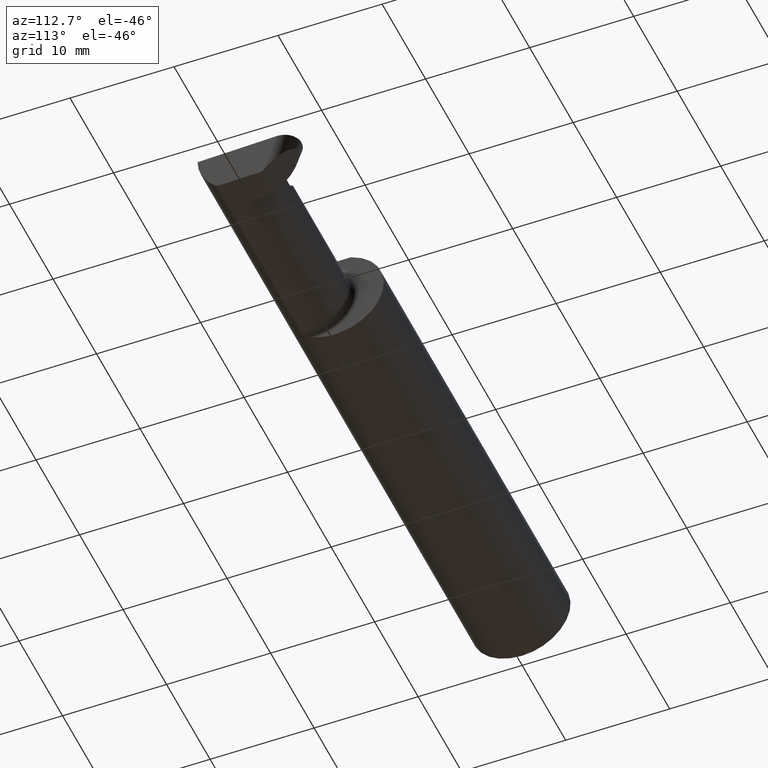
[diagram: clean part render]
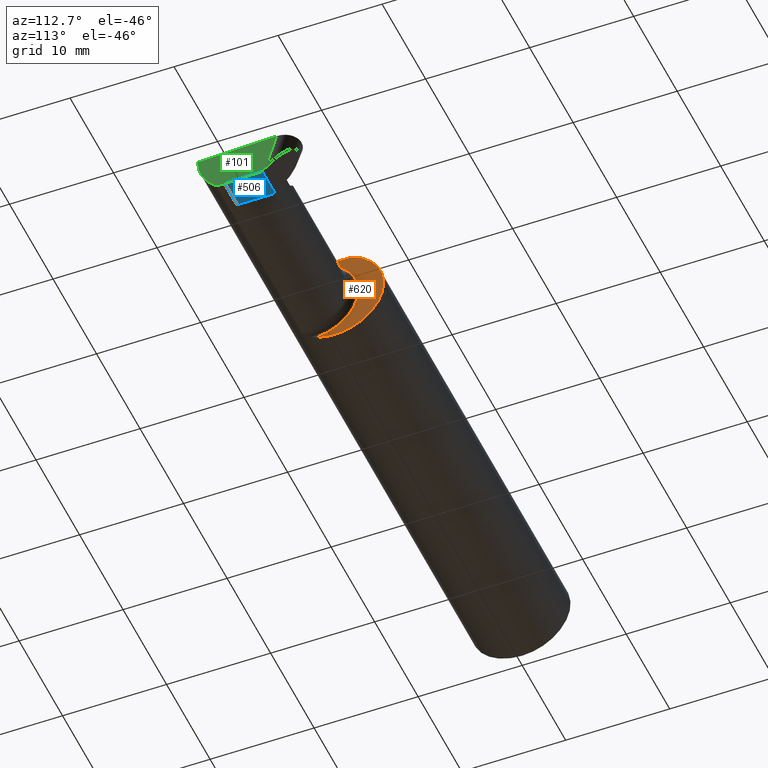
[diagram: same view with three faces highlighted in distinct colors, each labeled with its STEP entity id]
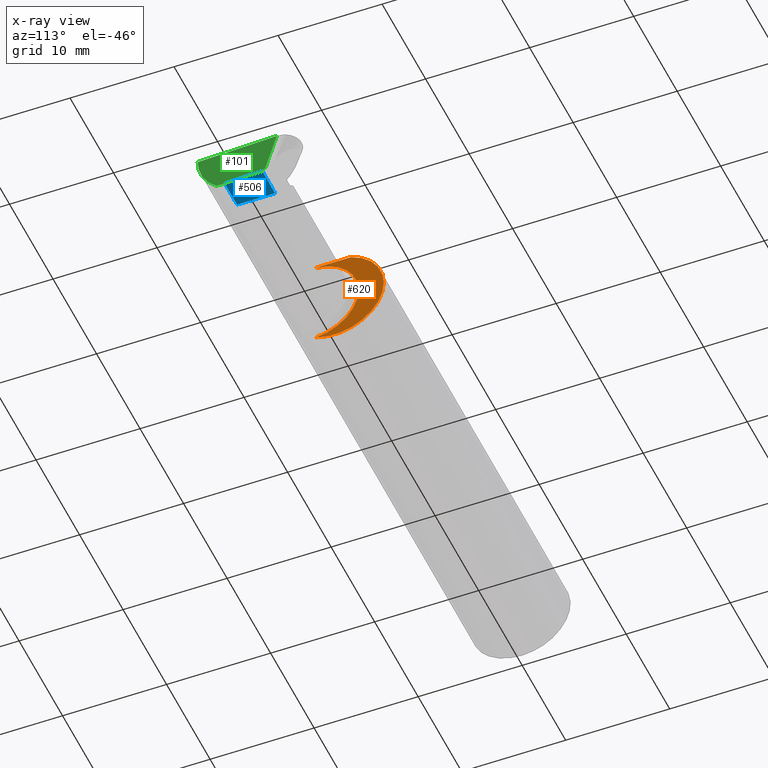
[diagram: x-ray of the same camera — body ghosted, the three highlighted faces saturated]
A machine part, auxiliary view with three faces highlighted in distinct colors.
The next image is the same camera in x-ray (body ghosted, the three faces saturated) — at least one of them is partly hidden behind the body in this view.
Their STEP definitions:

[orange] entity #620 — the highlighted planar face has unit normal (1, 0, 0).
#13 = EDGE_CURVE ( 'NONE', #93, #87, #415, .T. ) ;
#51 = FACE_OUTER_BOUND ( 'NONE', #496, .T. ) ;
#87 = VERTEX_POINT ( 'NONE', #347 ) ;
#93 = VERTEX_POINT ( 'NONE', #130 ) ;
#114 = DIRECTION ( 'NONE',  ( 1.000000000000000000, 0.000000000000000000, 0.000000000000000000 ) ) ;
#119 = DIRECTION ( 'NONE',  ( 1.000000000000000000, 0.000000000000000000, 0.000000000000000000 ) ) ;
#130 = CARTESIAN_POINT ( 'NONE',  ( 1.699999999999999956, -0.06325108694718287183, 0.1763499999999999235 ) ) ;
#196 = DIRECTION ( 'NONE',  ( 0.000000000000000000, 0.000000000000000000, 1.000000000000000000 ) ) ;
#209 = EDGE_CURVE ( 'NONE', #601, #87, #422, .T. ) ;
#216 = ORIENTED_EDGE ( 'NONE', *, *, #13, .F. ) ;
#256 = CARTESIAN_POINT ( 'NONE',  ( 1.699999999999999956, -0.08334999999999999354, 0.000000000000000000 ) ) ;
#309 = PLANE ( 'NONE',  #504 ) ;
#343 = VECTOR ( 'NONE', #537, 39.37007874015748143 ) ;
#347 = CARTESIAN_POINT ( 'NONE',  ( 1.699999999999999956, 0.06325108694718235836, 0.1763499999999999235 ) ) ;
#358 = DIRECTION ( 'NONE',  ( 0.000000000000000000, 0.000000000000000000, -1.000000000000000000 ) ) ;
#367 = DIRECTION ( 'NONE',  ( 0.000000000000000000, 0.000000000000000000, -1.000000000000000000 ) ) ;
#377 = VERTEX_POINT ( 'NONE', #457 ) ;
#415 = LINE ( 'NONE', #545, #343 ) ;
#419 = CARTESIAN_POINT ( 'NONE',  ( 1.699999999999999956, 0.000000000000000000, 0.000000000000000000 ) ) ;
#420 = ORIENTED_EDGE ( 'NONE', *, *, #674, .T. ) ;
#422 = CIRCLE ( 'NONE', #524, 0.1873499999999999888 ) ;
#423 = EDGE_CURVE ( 'NONE', #93, #377, #786, .T. ) ;
#432 = CARTESIAN_POINT ( 'NONE',  ( 1.699999999999999956, 0.000000000000000000, 0.000000000000000000 ) ) ;
#436 = ORIENTED_EDGE ( 'NONE', *, *, #209, .T. ) ;
#438 = DIRECTION ( 'NONE',  ( 0.000000000000000000, 0.000000000000000000, -1.000000000000000000 ) ) ;
#457 = CARTESIAN_POINT ( 'NONE',  ( 1.699999999999999956, -0.06851976604679071992, 0.1743704796142198366 ) ) ;
#479 = DIRECTION ( 'NONE',  ( 1.000000000000000000, 0.000000000000000000, 0.000000000000000000 ) ) ;
#491 = CIRCLE ( 'NONE', #668, 0.1749999999999999334 ) ;
#496 = EDGE_LOOP ( 'NONE', ( #436, #216, #782, #420 ) ) ;
#499 = CARTESIAN_POINT ( 'NONE',  ( 1.699999999999999956, -0.06851976604679071992, -0.1743704796142198366 ) ) ;
#504 = AXIS2_PLACEMENT_3D ( 'NONE', #621, #114, #438 ) ;
#524 = AXIS2_PLACEMENT_3D ( 'NONE', #432, #119, #367 ) ;
#537 = DIRECTION ( 'NONE',  ( 0.000000000000000000, 1.000000000000000000, 0.000000000000000000 ) ) ;
#545 = CARTESIAN_POINT ( 'NONE',  ( 1.699999999999999956, 0.1873499999999998500, 0.1763499999999999235 ) ) ;
#601 = VERTEX_POINT ( 'NONE', #499 ) ;
#620 = ADVANCED_FACE ( 'NONE', ( #51 ), #309, .T. ) ;
#621 = CARTESIAN_POINT ( 'NONE',  ( 1.699999999999999956, 0.1873499999999999055, 0.000000000000000000 ) ) ;
#668 = AXIS2_PLACEMENT_3D ( 'NONE', #256, #766, #196 ) ;
#674 = EDGE_CURVE ( 'NONE', #377, #601, #491, .T. ) ;
#762 = AXIS2_PLACEMENT_3D ( 'NONE', #419, #479, #358 ) ;
#766 = DIRECTION ( 'NONE',  ( -1.000000000000000000, -0.000000000000000000, -0.000000000000000000 ) ) ;
#782 = ORIENTED_EDGE ( 'NONE', *, *, #423, .T. ) ;
#786 = CIRCLE ( 'NONE', #762, 0.1873499999999999888 ) ;

[blue] entity #506 — the highlighted planar face has unit normal (0, 0, 1).
#19 = VERTEX_POINT ( 'NONE', #797 ) ;
#55 = LINE ( 'NONE', #253, #733 ) ;
#102 = CARTESIAN_POINT ( 'NONE',  ( 2.379376900814294871, -0.08346159389558750752, -0.1500000000000000500 ) ) ;
#106 = CARTESIAN_POINT ( 'NONE',  ( 2.733184360054361939, -0.08335000000000014619, -0.1500000000000000500 ) ) ;
#109 = PLANE ( 'NONE',  #233 ) ;
#141 = CARTESIAN_POINT ( 'NONE',  ( 2.379331556216793597, 0.06030305154315079852, -0.1500000000000000500 ) ) ;
#150 = ORIENTED_EDGE ( 'NONE', *, *, #459, .T. ) ;
#153 = VECTOR ( 'NONE', #181, 39.37007874015748143 ) ;
#156 = DIRECTION ( 'NONE',  ( 1.000000000000000000, 0.000000000000000000, -0.000000000000000000 ) ) ;
#181 = DIRECTION ( 'NONE',  ( -1.000000000000000000, -0.000000000000000000, -0.000000000000000000 ) ) ;
#184 = EDGE_CURVE ( 'NONE', #501, #371, #55, .T. ) ;
#187 = EDGE_LOOP ( 'NONE', ( #299, #570, #150, #266 ) ) ;
#233 = AXIS2_PLACEMENT_3D ( 'NONE', #106, #237, #156 ) ;
#237 = DIRECTION ( 'NONE',  ( 0.000000000000000000, 0.000000000000000000, 1.000000000000000000 ) ) ;
#248 = VECTOR ( 'NONE', #417, 39.37007874015748143 ) ;
#253 = CARTESIAN_POINT ( 'NONE',  ( 2.490542817754151539, -0.07487677063221394314, -0.1500000000000000500 ) ) ;
#266 = ORIENTED_EDGE ( 'NONE', *, *, #184, .T. ) ;
#289 = LINE ( 'NONE', #102, #248 ) ;
#299 = ORIENTED_EDGE ( 'NONE', *, *, #658, .T. ) ;
#301 = LINE ( 'NONE', #750, #153 ) ;
#346 = CARTESIAN_POINT ( 'NONE',  ( 2.495263401164271588, 0.06030305154315081240, -0.1500000000000000222 ) ) ;
#371 = VERTEX_POINT ( 'NONE', #773 ) ;
#417 = DIRECTION ( 'NONE',  ( -0.0003154085283454165570, 0.9999999502587288980, 0.000000000000000000 ) ) ;
#459 = EDGE_CURVE ( 'NONE', #768, #501, #474, .T. ) ;
#474 = LINE ( 'NONE', #661, #480 ) ;
#480 = VECTOR ( 'NONE', #792, 39.37007874015748143 ) ;
#501 = VERTEX_POINT ( 'NONE', #346 ) ;
#506 = ADVANCED_FACE ( 'NONE', ( #800 ), #109, .F. ) ;
#570 = ORIENTED_EDGE ( 'NONE', *, *, #815, .T. ) ;
#658 = EDGE_CURVE ( 'NONE', #371, #19, #301, .T. ) ;
#661 = CARTESIAN_POINT ( 'NONE',  ( -0.001039370078739994957, 0.06030305154315079852, -0.1500000000000000500 ) ) ;
#692 = DIRECTION ( 'NONE',  ( -0.03489949670249442581, -0.9993908270190959842, 0.000000000000000000 ) ) ;
#733 = VECTOR ( 'NONE', #692, 39.37007874015748143 ) ;
#750 = CARTESIAN_POINT ( 'NONE',  ( 2.733184360054361939, -0.08335000000000014619, -0.1500000000000000500 ) ) ;
#768 = VERTEX_POINT ( 'NONE', #141 ) ;
#773 = CARTESIAN_POINT ( 'NONE',  ( 2.490246926064548560, -0.08335000000000014619, -0.1500000000000000500 ) ) ;
#792 = DIRECTION ( 'NONE',  ( 1.000000000000000000, -0.000000000000000000, -0.000000000000000000 ) ) ;
#797 = CARTESIAN_POINT ( 'NONE',  ( 2.379376865616626535, -0.08334999999999999354, -0.1500000000000000222 ) ) ;
#800 = FACE_OUTER_BOUND ( 'NONE', #187, .T. ) ;
#815 = EDGE_CURVE ( 'NONE', #19, #768, #289, .T. ) ;

[green] entity #101 — the highlighted planar face has unit normal (-0.9992, 0.0349, 0.0175).
#16 = CARTESIAN_POINT ( 'NONE',  ( 2.497701985005003511, 0.1068529269586859509, -0.1034501245844643563 ) ) ;
#26 = CARTESIAN_POINT ( 'NONE',  ( 2.490246926064548560, -0.08335000000000014619, -0.1500000000000000500 ) ) ;
#38 = CARTESIAN_POINT ( 'NONE',  ( 2.499961842619776053, 0.1198259601510516942, 0.000000000000000000 ) ) ;
#41 = CARTESIAN_POINT ( 'NONE',  ( 2.489130585478359858, -0.1172600179964006784, -0.1461167706989303650 ) ) ;
#55 = LINE ( 'NONE', #253, #733 ) ;
#64 = PLANE ( 'NONE',  #200 ) ;
#76 = CARTESIAN_POINT ( 'NONE',  ( 2.489130585478359858, -0.1172600179964006784, -0.1461167706989303650 ) ) ;
#101 = ADVANCED_FACE ( 'NONE', ( #182 ), #64, .F. ) ;
#117 = VECTOR ( 'NONE', #231, 39.37007874015748854 ) ;
#122 = LINE ( 'NONE', #338, #174 ) ;
#123 = VERTEX_POINT ( 'NONE', #688 ) ;
#126 = DIRECTION ( 'NONE',  ( -0.03489949670249442581, -0.9993908270190959842, 0.000000000000000000 ) ) ;
#165 = VERTEX_POINT ( 'NONE', #563 ) ;
#168 = LINE ( 'NONE', #38, #117 ) ;
#174 = VECTOR ( 'NONE', #770, 39.37007874015748143 ) ;
#182 = FACE_OUTER_BOUND ( 'NONE', #385, .T. ) ;
#184 = EDGE_CURVE ( 'NONE', #501, #371, #55, .T. ) ;
#200 = AXIS2_PLACEMENT_3D ( 'NONE', #632, #698, #126 ) ;
#223 = EDGE_CURVE ( 'NONE', #561, #165, #122, .T. ) ;
#231 = DIRECTION ( 'NONE',  ( -0.03489949670249442581, -0.9993908270190959842, 0.000000000000000000 ) ) ;
#253 = CARTESIAN_POINT ( 'NONE',  ( 2.490542817754151539, -0.07487677063221394314, -0.1500000000000000500 ) ) ;
#271 =( BOUNDED_CURVE ( )  B_SPLINE_CURVE ( 3, ( #76, #400, #649, #26 ),
 .UNSPECIFIED., .F., .T. ) 
 B_SPLINE_CURVE_WITH_KNOTS ( ( 4, 4 ),
 ( 0.8789888184544187855, 1.107026853503861874 ),
 .UNSPECIFIED. ) 
 CURVE ( )  GEOMETRIC_REPRESENTATION_ITEM ( )  RATIONAL_B_SPLINE_CURVE ( ( 1.000000000000000000, 0.9956712472009929815, 0.9956712472009929815, 1.000000000000000000 ) ) 
 REPRESENTATION_ITEM ( '' )  );
#280 = EDGE_CURVE ( 'NONE', #493, #123, #606, .T. ) ;
#297 = ORIENTED_EDGE ( 'NONE', *, *, #303, .T. ) ;
#303 = EDGE_CURVE ( 'NONE', #493, #371, #271, .T. ) ;
#338 = CARTESIAN_POINT ( 'NONE',  ( 2.499889975361145655, 0.1173673719240849594, 0.0008009143901308144907 ) ) ;
#346 = CARTESIAN_POINT ( 'NONE',  ( 2.495263401164271588, 0.06030305154315081240, -0.1500000000000000222 ) ) ;
#371 = VERTEX_POINT ( 'NONE', #773 ) ;
#385 = EDGE_LOOP ( 'NONE', ( #450, #689, #433, #793, #297, #726 ) ) ;
#393 = LINE ( 'NONE', #16, #455 ) ;
#400 = CARTESIAN_POINT ( 'NONE',  ( 2.489474166416076883, -0.1061291577212409715, -0.1486999626928446061 ) ) ;
#433 = ORIENTED_EDGE ( 'NONE', *, *, #449, .T. ) ;
#449 = EDGE_CURVE ( 'NONE', #165, #123, #168, .T. ) ;
#450 = ORIENTED_EDGE ( 'NONE', *, *, #780, .F. ) ;
#455 = VECTOR ( 'NONE', #567, 39.37007874015748143 ) ;
#493 = VERTEX_POINT ( 'NONE', #41 ) ;
#501 = VERTEX_POINT ( 'NONE', #346 ) ;
#561 = VERTEX_POINT ( 'NONE', #626 ) ;
#563 = CARTESIAN_POINT ( 'NONE',  ( 2.499866899295296374, 0.1171071390637351134, 0.000000000000000000 ) ) ;
#567 = DIRECTION ( 'NONE',  ( -0.03701744261649831530, -0.7066221440565398915, -0.7066221440565479961 ) ) ;
#568 = CARTESIAN_POINT ( 'NONE',  ( 2.488188068920404561, -0.1623470442677541203, -0.1099340280425338823 ) ) ;
#606 =( BOUNDED_CURVE ( )  B_SPLINE_CURVE ( 3, ( #777, #568, #641, #645 ),
 .UNSPECIFIED., .F., .T. ) 
 B_SPLINE_CURVE_WITH_KNOTS ( ( 4, 4 ),
 ( 5.852427379562172405, 6.746954780470620250 ),
 .UNSPECIFIED. ) 
 CURVE ( )  GEOMETRIC_REPRESENTATION_ITEM ( )  RATIONAL_B_SPLINE_CURVE ( ( 1.000000000000000000, 0.9344226172588802060, 0.9344226172588802060, 1.000000000000000000 ) ) 
 REPRESENTATION_ITEM ( '' )  );
#626 = CARTESIAN_POINT ( 'NONE',  ( 2.495889335989002422, 0.07225145685232294002, -0.1380515946908277558 ) ) ;
#632 = CARTESIAN_POINT ( 'NONE',  ( 2.499961842619776053, 0.1198259601510516942, 0.000000000000000000 ) ) ;
#641 = CARTESIAN_POINT ( 'NONE',  ( 2.488225324098681579, -0.1873500000000000443, -0.05781030015605120864 ) ) ;
#645 = CARTESIAN_POINT ( 'NONE',  ( 2.489235021721937002, -0.1873499999999999888, 0.000000000000000000 ) ) ;
#649 = CARTESIAN_POINT ( 'NONE',  ( 2.489847897735300464, -0.09477667630339431382, -0.1499999999999999667 ) ) ;
#688 = CARTESIAN_POINT ( 'NONE',  ( 2.489235021721937002, -0.1873499999999999888, 0.000000000000000000 ) ) ;
#689 = ORIENTED_EDGE ( 'NONE', *, *, #223, .T. ) ;
#692 = DIRECTION ( 'NONE',  ( -0.03489949670249442581, -0.9993908270190959842, 0.000000000000000000 ) ) ;
#698 = DIRECTION ( 'NONE',  ( -0.9992386149554828290, 0.03489418134010712630, 0.01745240643728358798 ) ) ;
#726 = ORIENTED_EDGE ( 'NONE', *, *, #184, .F. ) ;
#733 = VECTOR ( 'NONE', #692, 39.37007874015748143 ) ;
#770 = DIRECTION ( 'NONE',  ( 0.02739170151060025399, 0.3089010440752013031, 0.9506996579664918068 ) ) ;
#773 = CARTESIAN_POINT ( 'NONE',  ( 2.490246926064548560, -0.08335000000000014619, -0.1500000000000000500 ) ) ;
#777 = CARTESIAN_POINT ( 'NONE',  ( 2.489130585478359858, -0.1172600179964006784, -0.1461167706989303650 ) ) ;
#780 = EDGE_CURVE ( 'NONE', #561, #501, #393, .T. ) ;
#793 = ORIENTED_EDGE ( 'NONE', *, *, #280, .F. ) ;